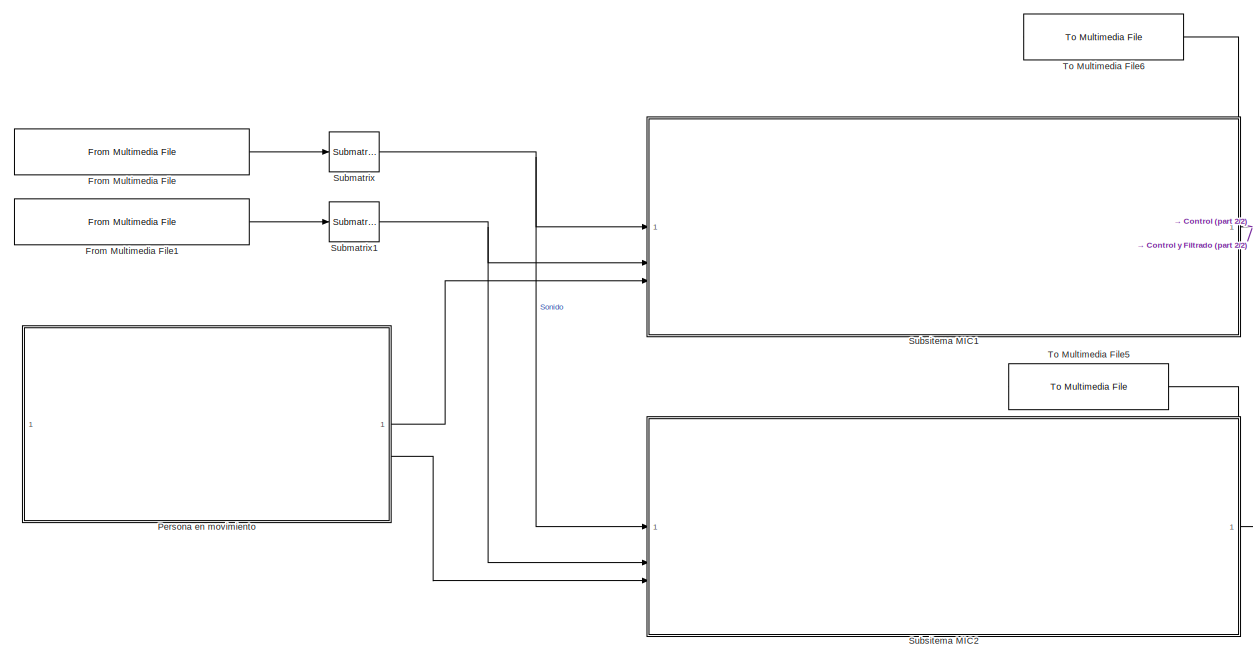
[diagram: root canvas - part 1/2, left side, full height]
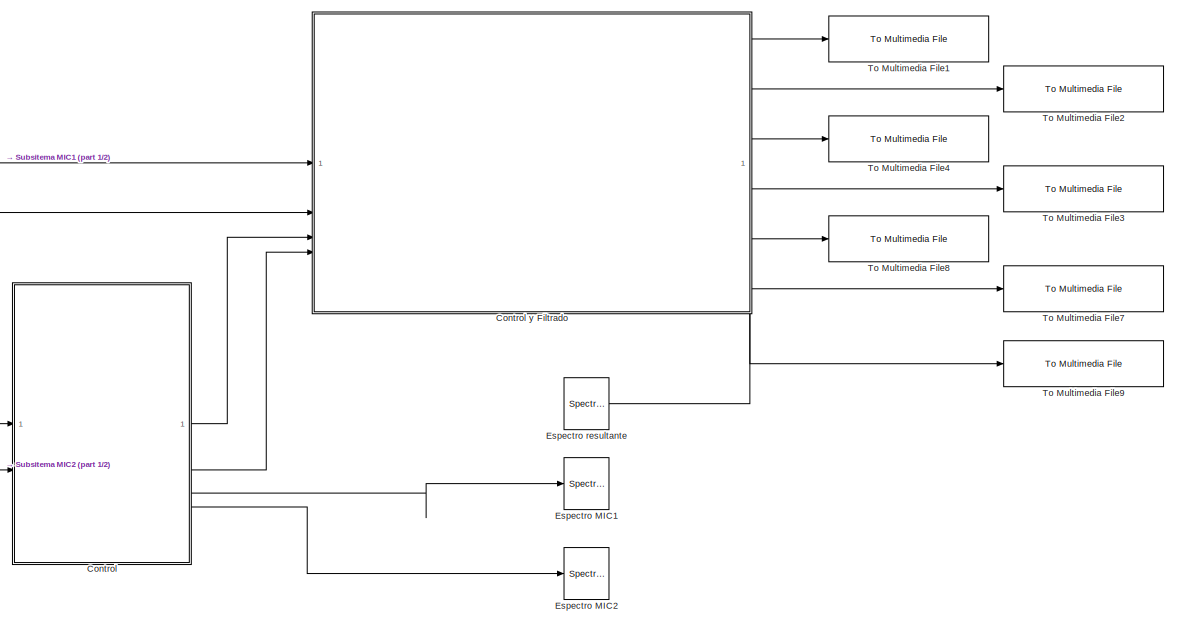
[diagram: root canvas - part 2/2, right side, full height]
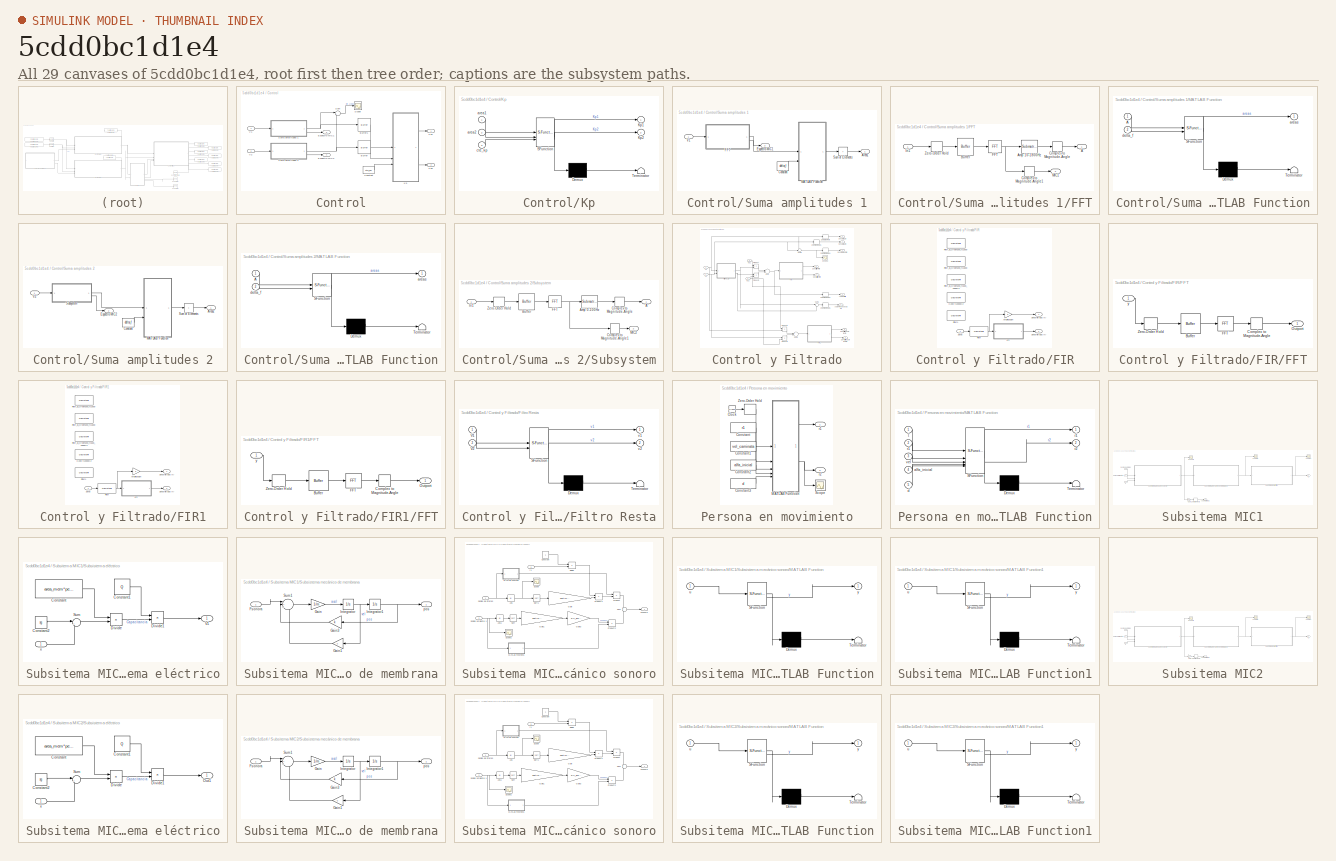
[diagram: thumbnail index - all 29 canvases of the model, root first then tree order]
MODEL slx_5cdd0bc1d1e4
KIND model
CONFIG AbsTol = auto
CONFIG EnableMultiTasking = off
CONFIG FixedStep = auto
CONFIG MaxStep = auto
CONFIG MinStep = auto
CONFIG RelTol = auto
CONFIG SampleTimeConstraint = Unconstrained
CONFIG SolverName = VariableStepAuto
CONFIG StartTime = 0.0
CONFIG StopTime = 3
BLOCK [SubSystem] Control
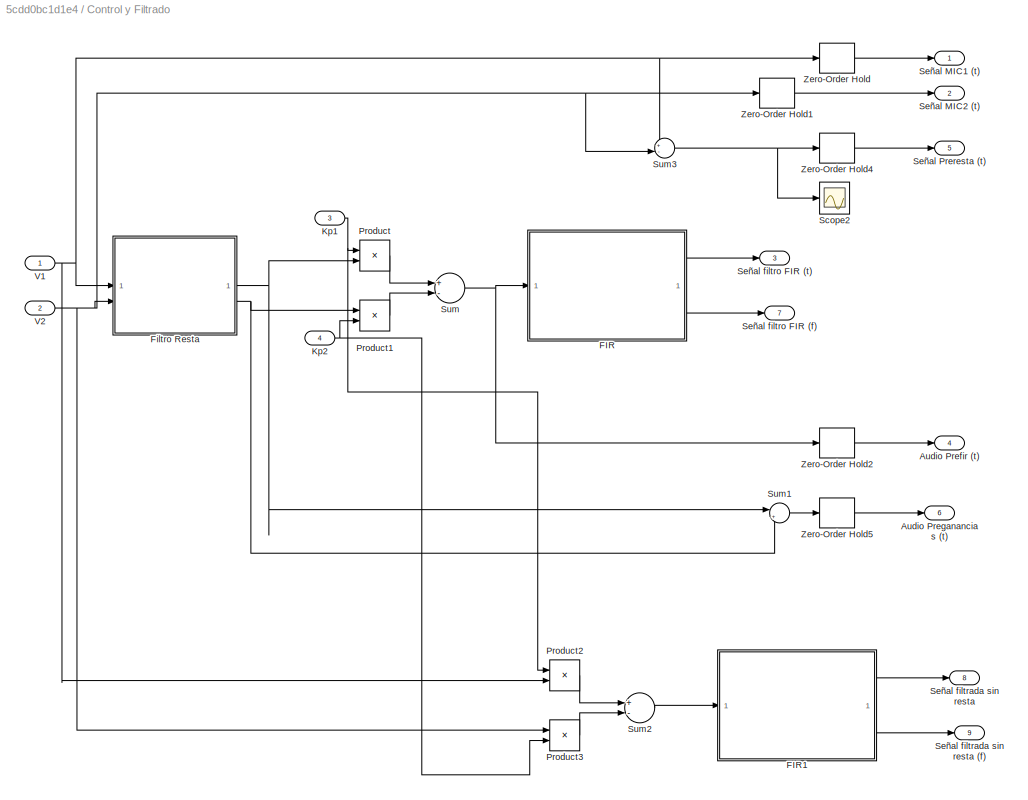
BLOCK [SubSystem] Control y Filtrado
  PortSchema = {"entries":[{"content":{"sides":[{"content":{"connectorIds":["In1","In2","In3","In4"]},"type":"ConnectorPlacement.EquallySpacedRectSide","uuid":"987fd9d9-21cd-4123-ad92-dc5a5b3a4bf5"},{"content":{"connectorIds":["Out1","Out2","Out3","Out4","Out5","Out6"],"side":"RIGHT"},"type":"ConnectorPlacement.EquallySpacedRectSide","uuid":"e6fc02b1-7263-4043-9731-d885e9513b62"},{"content":{"side":"TOP"},"type"...<+439ch>
BLOCK [Outport] Control y Filtrado/Audio Prefir (t)
  Port = 4
BLOCK [Outport] Control y Filtrado/Audio Preganancias (t)
  Port = 6
BLOCK [SubSystem] Control y Filtrado/FIR
BLOCK [Gain] Control y Filtrado/FIR/Amplificación
  Gain = 5
BLOCK [SubSystem] Control y Filtrado/FIR/FFT
BLOCK [Buffer] Control y Filtrado/FIR/FFT/Buffer
  N = 4410
  OutputFrames = off
BLOCK [ComplexToMagnitudeAngle] Control y Filtrado/FIR/FFT/Complex to Magnitude-Angle
  Output = Magnitude
BLOCK [Reference] Control y Filtrado/FIR/FFT/FFT  REF=dspxfrm3/FFT
  SourceBlock = dspxfrm3/FFT
  SourceType = FFT
BLOCK [Outport] Control y Filtrado/FIR/FFT/Outport
BLOCK [ZeroOrderHold] Control y Filtrado/FIR/FFT/Zero-Order Hold
  SampleTime = zoh_freq
BLOCK [Inport] Control y Filtrado/FIR/FFT/y
BLOCK [DiscreteFir] Control y Filtrado/FIR/Filter
  Coefficients = [0.000129486754971239307 -1.19387172948777314e-18 -0.000140997651009532732 -0.000293635243158208239 -0.000455749203386080902 -0.000621544103457885187 -0.000780672328542729422 -0.000917951896092269147 -0.00101387848765041393 -0.00104599980878265927 -0.000991116011549424613 -0.000828159701590279115 -0.000541504880495220949 -0.00012436801684229397 0.000418092861154113955 0.00106639506092730436 0.0017...<+1967ch>
  InputPortMap = u0
  OutputPortMap = o0
  Tag = BlockMethodSubSystem
BLOCK [DiscreteFir] Control y Filtrado/FIR/Filter1
  Coefficients = [0 -2.46968087486229999e-06 -3.07570330301983584e-05 -0.000118398297516965302 -0.000298367075036484037 -0.000596227803309950849 -0.00102003077952711506 -0.00154756625881359144 -0.00211289076768585247 -0.00259518747306043901 -0.00281365562212182018 -0.00253195194747434741 -0.00147460264563965674 0.00064414461322387991 0.00408104805501018075 0.00901875177176652762 0.0155214581908035953 0.02349910102...<+745ch>
  InputPortMap = u0
  OutputPortMap = o0
  Tag = BlockMethodSubSystem
BLOCK [DiscreteFir] Control y Filtrado/FIR/Filter_B_Orden200_fc1500
  Coefficients = [0 2.11514125222930549e-07 1.00093934765138096e-06 2.50662436979156886e-06 4.71763254290821587e-06 7.45535130819729324e-06 1.03710140877794857e-05 1.2960590087806268e-05 1.45973519410186672e-05 1.45811762675124996e-05 1.22023273134778345e-05 6.81618827244323951e-06 -2.07578339154207704e-06 -1.47446077930910027e-05 -3.11583144423782112e-05 -5.09193211148811369e-05 -7.32215020803920553e-05 -9.683328...<+4311ch>  <repeated x4 — deduplicated; at blocks: Filter_B_Orden200_fc1500, Filter_B_Orden200_fc1800>
  InputPortMap = u0
  OutputPortMap = o0
  Tag = BlockMethodSubSystem
BLOCK [DiscreteFir] Control y Filtrado/FIR/Filter_B_Orden200_fc1800
  InputPortMap = u0
  OutputPortMap = o0
  Tag = BlockMethodSubSystem
BLOCK [DiscreteFir] Control y Filtrado/FIR/Filter_B_Orden200_fc500_1600Hz
  Coefficients = [0 -3.55324752461809841e-07 -1.14041164662054229e-06 -1.86555151808696453e-06 -1.99844780883798536e-06 -1.03117503681064552e-06 1.45062710751347741e-06 5.70289528973608542e-06 1.17693159029814948e-05 1.94448656927964283e-05 2.82621895124256615e-05 3.75049240470417836e-05 4.62502611344708104e-05 5.34408510414543662e-05 5.79836863954314837e-05 5.88710269009623936e-05 5.53158980566520483e-05 4.689241...<+4287ch>
  InputPortMap = u0
  OutputPortMap = o0
  Tag = BlockMethodSubSystem
BLOCK [DiscreteFir] Control y Filtrado/FIR/H200 fc2000Hz
  Coefficients = [-5.56928887965323996e-05 1.65011438245537004e-05 8.97404129389855278e-05 0.000159235323802665862 0.00022009162972417537 0.000267507778546905491 0.000297028076662561244 0.00030485366062257119 0.000288200030555739591 0.000245675511305965986 0.000177641669329940406 8.6506699720296273e-05 -2.31018469780051173e-05 -0.00014433637834937926 -0.000268342086729793134 -0.000384707364236210015 -0.00048215215...<+4331ch>
  InputPortMap = u0
  OutputPortMap = o0
  Tag = BlockMethodSubSystem
BLOCK [Inport] Control y Filtrado/FIR/Señal
BLOCK [Outport] Control y Filtrado/FIR/Señal filtrada (f)
  Port = 2
BLOCK [Outport] Control y Filtrado/FIR/Señal filtrada (t)
BLOCK [SubSystem] Control y Filtrado/FIR1
BLOCK [Gain] Control y Filtrado/FIR1/Amplificación
  Gain = 5
BLOCK [SubSystem] Control y Filtrado/FIR1/FFT
BLOCK [Buffer] Control y Filtrado/FIR1/FFT/Buffer
  N = 4410
  OutputFrames = off
BLOCK [ComplexToMagnitudeAngle] Control y Filtrado/FIR1/FFT/Complex to Magnitude-Angle
  Output = Magnitude
BLOCK [Reference] Control y Filtrado/FIR1/FFT/FFT  REF=dspxfrm3/FFT
  SourceBlock = dspxfrm3/FFT
  SourceType = FFT
BLOCK [Outport] Control y Filtrado/FIR1/FFT/Outport
BLOCK [ZeroOrderHold] Control y Filtrado/FIR1/FFT/Zero-Order Hold
  SampleTime = zoh_freq
BLOCK [Inport] Control y Filtrado/FIR1/FFT/y
BLOCK [DiscreteFir] Control y Filtrado/FIR1/Filter
  Coefficients = [0.000129486754971239307 -1.19387172948777314e-18 -0.000140997651009532732 -0.000293635243158208239 -0.000455749203386080902 -0.000621544103457885187 -0.000780672328542729422 -0.000917951896092269147 -0.00101387848765041393 -0.00104599980878265927 -0.000991116011549424613 -0.000828159701590279115 -0.000541504880495220949 -0.00012436801684229397 0.000418092861154113955 0.00106639506092730436 0.0017...<+1967ch>
  InputPortMap = u0
  OutputPortMap = o0
  Tag = BlockMethodSubSystem
BLOCK [DiscreteFir] Control y Filtrado/FIR1/Filter1
  Coefficients = [0 -2.46968087486229999e-06 -3.07570330301983584e-05 -0.000118398297516965302 -0.000298367075036484037 -0.000596227803309950849 -0.00102003077952711506 -0.00154756625881359144 -0.00211289076768585247 -0.00259518747306043901 -0.00281365562212182018 -0.00253195194747434741 -0.00147460264563965674 0.00064414461322387991 0.00408104805501018075 0.00901875177176652762 0.0155214581908035953 0.02349910102...<+745ch>
  InputPortMap = u0
  OutputPortMap = o0
  Tag = BlockMethodSubSystem
BLOCK [DiscreteFir] Control y Filtrado/FIR1/Filter_B_Orden200_fc1500
  InputPortMap = u0
  OutputPortMap = o0
  Tag = BlockMethodSubSystem
BLOCK [DiscreteFir] Control y Filtrado/FIR1/Filter_B_Orden200_fc1800
  InputPortMap = u0
  OutputPortMap = o0
  Tag = BlockMethodSubSystem
BLOCK [DiscreteFir] Control y Filtrado/FIR1/Filter_B_Orden200_fc500_1600Hz
  Coefficients = [0 -3.55324752461809841e-07 -1.14041164662054229e-06 -1.86555151808696453e-06 -1.99844780883798536e-06 -1.03117503681064552e-06 1.45062710751347741e-06 5.70289528973608542e-06 1.17693159029814948e-05 1.94448656927964283e-05 2.82621895124256615e-05 3.75049240470417836e-05 4.62502611344708104e-05 5.34408510414543662e-05 5.79836863954314837e-05 5.88710269009623936e-05 5.53158980566520483e-05 4.689241...<+4287ch>
  InputPortMap = u0
  OutputPortMap = o0
  Tag = BlockMethodSubSystem
BLOCK [DiscreteFir] Control y Filtrado/FIR1/H200 fc2000Hz
  Coefficients = [-5.56928887965323996e-05 1.65011438245537004e-05 8.97404129389855278e-05 0.000159235323802665862 0.00022009162972417537 0.000267507778546905491 0.000297028076662561244 0.00030485366062257119 0.000288200030555739591 0.000245675511305965986 0.000177641669329940406 8.6506699720296273e-05 -2.31018469780051173e-05 -0.00014433637834937926 -0.000268342086729793134 -0.000384707364236210015 -0.00048215215...<+4331ch>
  InputPortMap = u0
  OutputPortMap = o0
  Tag = BlockMethodSubSystem
BLOCK [Inport] Control y Filtrado/FIR1/Señal
BLOCK [Outport] Control y Filtrado/FIR1/Señal filtrada (f)
  Port = 2
BLOCK [Outport] Control y Filtrado/FIR1/Señal filtrada (t)
BLOCK [SubSystem] Control y Filtrado/Filtro Resta
  ErrorFcn = Stateflow.Translate.translate
  LibrarySourceBlock = simulink/User-Defined\nFunctions/MATLAB Function
  PermitHierarchicalResolution = ExplicitOnly
  SFBlockType = MATLAB Function
  TreatAsAtomicUnit = on
BLOCK [Demux] Control y Filtrado/Filtro Resta/ Demux 
  Outputs = 1
BLOCK [S-Function] Control y Filtrado/Filtro Resta/ SFunction 
  EnableBusSupport = on
  FunctionName = sf_sfun
  PortCounts = [2 3]
  SFcnIsStateOwnerBlock = off
  SFunctionDeploymentMode = off
  Tag = Stateflow S-Function 1
BLOCK [Terminator] Control y Filtrado/Filtro Resta/ Terminator 
BLOCK [Inport] Control y Filtrado/Filtro Resta/V1
BLOCK [Inport] Control y Filtrado/Filtro Resta/V2
  Port = 2
BLOCK [Outport] Control y Filtrado/Filtro Resta/v1
BLOCK [Outport] Control y Filtrado/Filtro Resta/v2
  Port = 2
BLOCK [Inport] Control y Filtrado/Kp1
  Port = 3
BLOCK [Inport] Control y Filtrado/Kp2
  Port = 4
BLOCK [Product] Control y Filtrado/Product
BLOCK [Product] Control y Filtrado/Product1
BLOCK [Product] Control y Filtrado/Product2
BLOCK [Product] Control y Filtrado/Product3
BLOCK [Scope] Control y Filtrado/Scope2
  Floating = off
  NumInputPorts = 1
  ScopeSpecificationString = Simulink.scopes.TimeScopeBlockCfg('CurrentConfiguration', extmgr.ConfigurationSet(extmgr.Configuration('Core','General UI',true),extmgr.Configuration('Core','Source UI',true),extmgr.Configuration('Sources','WiredSimulink',true,'DataLoggingVariableName','ScopeData1'),extmgr.Configuration('Visuals','Time Domain',true,'SerializedDisplays',{struct('MinYLimReal','-0.05682','MaxYLimReal','0.0562','YLabe...<+1388ch>
BLOCK [Outport] Control y Filtrado/Señal MIC1 (t)
BLOCK [Outport] Control y Filtrado/Señal MIC2 (t)
  Port = 2
BLOCK [Outport] Control y Filtrado/Señal Preresta (t)
  Port = 5
BLOCK [Outport] Control y Filtrado/Señal filtrada sin resta
  Port = 8
BLOCK [Outport] Control y Filtrado/Señal filtrada sin resta (f)
  Port = 9
BLOCK [Outport] Control y Filtrado/Señal filtro FIR (f)
  Port = 7
BLOCK [Outport] Control y Filtrado/Señal filtro FIR (t)
  Port = 3
BLOCK [Sum] Control y Filtrado/Sum
  Inputs = +-
BLOCK [Sum] Control y Filtrado/Sum1
  Inputs = |+-
BLOCK [Sum] Control y Filtrado/Sum2
  Inputs = +-
BLOCK [Sum] Control y Filtrado/Sum3
  Inputs = +-|
BLOCK [Inport] Control y Filtrado/V1
BLOCK [Inport] Control y Filtrado/V2
  Port = 2
BLOCK [ZeroOrderHold] Control y Filtrado/Zero-Order Hold
  SampleTime = 1/fs
BLOCK [ZeroOrderHold] Control y Filtrado/Zero-Order Hold1
  SampleTime = 1/fs
BLOCK [ZeroOrderHold] Control y Filtrado/Zero-Order Hold2
  SampleTime = 1/fs
BLOCK [ZeroOrderHold] Control y Filtrado/Zero-Order Hold4
  SampleTime = 1/44100
BLOCK [ZeroOrderHold] Control y Filtrado/Zero-Order Hold5
  SampleTime = 1/fs
BLOCK [Buffer] Control/Buffer
  N = 10
  OutputFrames = off
  V = 9
BLOCK [Buffer] Control/Buffer1
  N = 10
  OutputFrames = off
  V = 9
BLOCK [Constant] Control/Constant
  Value = cte_kp
BLOCK [Outport] Control/Espectro MIC1
  Port = 3
BLOCK [Outport] Control/Espectro MIC2
  Port = 4
BLOCK [SubSystem] Control/Kp
  ErrorFcn = Stateflow.Translate.translate
  LibrarySourceBlock = simulink/User-Defined\nFunctions/MATLAB Function
  PermitHierarchicalResolution = ExplicitOnly
  SFBlockType = MATLAB Function
  TreatAsAtomicUnit = on
BLOCK [Demux] Control/Kp/ Demux 
  Outputs = 1
BLOCK [S-Function] Control/Kp/ SFunction 
  EnableBusSupport = on
  FunctionName = sf_sfun
  PortCounts = [3 3]
  SFcnIsStateOwnerBlock = off
  SFunctionDeploymentMode = off
  Tag = Stateflow S-Function 11
BLOCK [Terminator] Control/Kp/ Terminator 
BLOCK [Outport] Control/Kp/Kp1
BLOCK [Outport] Control/Kp/Kp2
  Port = 2
BLOCK [Inport] Control/Kp/area1
BLOCK [Inport] Control/Kp/area2
  Port = 2
BLOCK [Inport] Control/Kp/cte_kp
  Port = 3
BLOCK [Outport] Control/Kp1
BLOCK [Outport] Control/Kp2
  Port = 2
BLOCK [Scope] Control/Scope
  Floating = off
  NumInputPorts = 1
  ScopeSpecificationString = Simulink.scopes.TimeScopeBlockCfg('CurrentConfiguration', extmgr.ConfigurationSet(extmgr.Configuration('Core','General UI',true),extmgr.Configuration('Core','Source UI',true),extmgr.Configuration('Sources','WiredSimulink',true,'DataLoggingVariableName','ScopeData2'),extmgr.Configuration('Visuals','Time Domain',true,'SerializedDisplays',{struct('MinYLimReal','-1439.47469','MaxYLimReal','404.61958',...<+1455ch>
BLOCK [Sum] Control/Sum
  Inputs = |+-
BLOCK [SubSystem] Control/Suma amplitudes 1
BLOCK [Outport] Control/Suma amplitudes 1/Area1
BLOCK [Constant] Control/Suma amplitudes 1/Constant
  Value = delta_f
BLOCK [Outport] Control/Suma amplitudes 1/Espectro MIC1
  Port = 2
BLOCK [SubSystem] Control/Suma amplitudes 1/FFT
BLOCK [Outport] Control/Suma amplitudes 1/FFT/A
BLOCK [Reference] Control/Suma amplitudes 1/FFT/Amp 10-1800Hz  REF=matrix_library/Submatrix
  LibrarySourceBlock = simulink/Matrix\nOperations/Submatrix
  SourceBlock = matrix_library/Submatrix
  SourceType = Submatrix
BLOCK [Buffer] Control/Suma amplitudes 1/FFT/Buffer
  N = ventana_fft
  OutputFrames = off
  V = ventana_fft_analisis-1
BLOCK [ComplexToMagnitudeAngle] Control/Suma amplitudes 1/FFT/Complex to Magnitude-Angle
  Output = Magnitude
BLOCK [ComplexToMagnitudeAngle] Control/Suma amplitudes 1/FFT/Complex to Magnitude-Angle1
  Output = Magnitude
BLOCK [Reference] Control/Suma amplitudes 1/FFT/FFT  REF=dspxfrm3/FFT
  SourceBlock = dspxfrm3/FFT
  SourceType = FFT
BLOCK [Inport] Control/Suma amplitudes 1/FFT/In1
BLOCK [Outport] Control/Suma amplitudes 1/FFT/MIC1
  Port = 2
BLOCK [ZeroOrderHold] Control/Suma amplitudes 1/FFT/Zero-Order Hold
  SampleTime = zoh_freq
BLOCK [SubSystem] Control/Suma amplitudes 1/MATLAB Function
  ErrorFcn = Stateflow.Translate.translate
  LibrarySourceBlock = simulink/User-Defined\nFunctions/MATLAB Function
  PermitHierarchicalResolution = ExplicitOnly
  SFBlockType = MATLAB Function
  TreatAsAtomicUnit = on
BLOCK [Demux] Control/Suma amplitudes 1/MATLAB Function/ Demux 
  Outputs = 1
BLOCK [S-Function] Control/Suma amplitudes 1/MATLAB Function/ SFunction 
  EnableBusSupport = on
  FunctionName = sf_sfun
  PortCounts = [2 2]
  SFcnIsStateOwnerBlock = off
  SFunctionDeploymentMode = off
  Tag = Stateflow S-Function 15
BLOCK [Terminator] Control/Suma amplitudes 1/MATLAB Function/ Terminator 
BLOCK [Inport] Control/Suma amplitudes 1/MATLAB Function/A
BLOCK [Outport] Control/Suma amplitudes 1/MATLAB Function/areas
BLOCK [Inport] Control/Suma amplitudes 1/MATLAB Function/delta_f
  Port = 2
BLOCK [Sum] Control/Suma amplitudes 1/Sum of Elements
  IconShape = rectangular
  Inputs = +
BLOCK [Inport] Control/Suma amplitudes 1/V1
BLOCK [SubSystem] Control/Suma amplitudes 2
BLOCK [Outport] Control/Suma amplitudes 2/Area2
BLOCK [Constant] Control/Suma amplitudes 2/Constant
  Value = delta_f
BLOCK [Outport] Control/Suma amplitudes 2/Espectro MIC2
  Port = 2
BLOCK [SubSystem] Control/Suma amplitudes 2/MATLAB Function
  ErrorFcn = Stateflow.Translate.translate
  LibrarySourceBlock = simulink/User-Defined\nFunctions/MATLAB Function
  PermitHierarchicalResolution = ExplicitOnly
  SFBlockType = MATLAB Function
  TreatAsAtomicUnit = on
BLOCK [Demux] Control/Suma amplitudes 2/MATLAB Function/ Demux 
  Outputs = 1
BLOCK [S-Function] Control/Suma amplitudes 2/MATLAB Function/ SFunction 
  EnableBusSupport = on
  FunctionName = sf_sfun
  PortCounts = [2 2]
  SFcnIsStateOwnerBlock = off
  SFunctionDeploymentMode = off
  Tag = Stateflow S-Function 16
BLOCK [Terminator] Control/Suma amplitudes 2/MATLAB Function/ Terminator 
BLOCK [Inport] Control/Suma amplitudes 2/MATLAB Function/A
BLOCK [Outport] Control/Suma amplitudes 2/MATLAB Function/areas
BLOCK [Inport] Control/Suma amplitudes 2/MATLAB Function/delta_f
  Port = 2
BLOCK [SubSystem] Control/Suma amplitudes 2/Subsystem
BLOCK [Outport] Control/Suma amplitudes 2/Subsystem/A
BLOCK [Reference] Control/Suma amplitudes 2/Subsystem/Amp 0-100Hz  REF=matrix_library/Submatrix
  LibrarySourceBlock = simulink/Matrix\nOperations/Submatrix
  SourceBlock = matrix_library/Submatrix
  SourceType = Submatrix
BLOCK [Buffer] Control/Suma amplitudes 2/Subsystem/Buffer
  N = ventana_fft
  OutputFrames = off
  V = ventana_fft_analisis-1
BLOCK [ComplexToMagnitudeAngle] Control/Suma amplitudes 2/Subsystem/Complex to Magnitude-Angle
  Output = Magnitude
BLOCK [ComplexToMagnitudeAngle] Control/Suma amplitudes 2/Subsystem/Complex to Magnitude-Angle1
  Output = Magnitude
BLOCK [Reference] Control/Suma amplitudes 2/Subsystem/FFT  REF=dspxfrm3/FFT
  SourceBlock = dspxfrm3/FFT
  SourceType = FFT
BLOCK [Inport] Control/Suma amplitudes 2/Subsystem/In1
BLOCK [Outport] Control/Suma amplitudes 2/Subsystem/MIC2
  Port = 2
BLOCK [ZeroOrderHold] Control/Suma amplitudes 2/Subsystem/Zero-Order Hold
  SampleTime = zoh_freq
BLOCK [Sum] Control/Suma amplitudes 2/Sum of Elements
  IconShape = rectangular
  Inputs = +
BLOCK [Inport] Control/Suma amplitudes 2/V2
BLOCK [Inport] Control/V1
BLOCK [Inport] Control/V2
  Port = 2
BLOCK [SpectrumAnalyzer] Espectro MIC1
  DefaultConfigurationName = spbscopes.SpectrumAnalyzerBlockCfg
  FrequencyInputRBWFromPort = 0
  FrequencyInputRBWPort = 0
  FrequencySpan = Start and stop frequencies
  FrequencyVectorFromPort = 0
  FrequencyVectorPort = 0
  GraphicalSettings = {"GraphicalSettings":{"Style":{"BackgroundColor":[1,1,1],"AxesColor":[1,1,1],"LabelsColor":[0,0,0],"PreserveColors":false,"Visible":[true],"LineStyle":["-"],"LineColor":[[0,0.4470588235294118,0.7411764705882353]],"LineWidth":[1.5],"Marker":["none"],"FontSize":"small"},"Cursors":{"Enabled":false,"XLocation":[2,8],"YLocation":[2,8],"SnapToData":false,"LockSpacing":false,"ShowText":false,"LinkToWavef...<+745ch>
  InputDomain = Frequency
  IsFrequencyInputMode = 0
  PlotAsTwoSidedSpectrum = off
  SampleRate = 44.1e3
  SampleRateSource = Property
  ScopeFrameLocation = window
  ScopeSpecificationString = spbscopes.SpectrumAnalyzerBlockCfg('CurrentConfiguration', extmgr.ConfigurationSet(extmgr.Configuration('Core','General UI',true),extmgr.Configuration('Core','Source UI',true),extmgr.Configuration('Sources','WiredSimulink',true),extmgr.Configuration('Visuals','Spectrum',true,'AxesProperties',struct('Color',{[0 0 0],[0 0 0]},'XColor',{[0.686274509803922 0.686274509803922 0.686274509803922],[0.68627...<+1720ch>  <repeated x3 — deduplicated; at blocks: Espectro MIC1, Espectro MIC2, Espectro resultante>
  SpectrumUnits = Auto
  StartFrequency = 20
  StopFrequency = 20e3
  Visible = on
  WasSavedAsWebScope = on
  WindowPosition = [-1082.000000,-195.000000,958.000000,485.000000,]
  YLimits = [-272.35090777,2451.67942827]
BLOCK [SpectrumAnalyzer] Espectro MIC2
  DefaultConfigurationName = spbscopes.SpectrumAnalyzerBlockCfg
  FrequencyInputRBWFromPort = 0
  FrequencyInputRBWPort = 0
  FrequencySpan = Start and stop frequencies
  FrequencyVectorFromPort = 0
  FrequencyVectorPort = 0
  GraphicalSettings = {"GraphicalSettings":{"Style":{"BackgroundColor":[1,1,1],"AxesColor":[1,1,1],"LabelsColor":[0,0,0],"PreserveColors":false,"Visible":[true],"LineStyle":["-"],"LineColor":[[0,0,0]],"LineWidth":[1.5],"Marker":["none"],"FontSize":"small"},"Cursors":{"Enabled":false,"XLocation":[2,8],"YLocation":[2,8],"SnapToData":false,"LockSpacing":false,"ShowText":false,"LinkToWaveform":true,"Vertical":true,"Horizon...<+711ch>
  InputDomain = Frequency
  IsFrequencyInputMode = 0
  PlotAsTwoSidedSpectrum = off
  SampleRate = 44.1e3
  SampleRateSource = Property
  ScopeFrameLocation = window
  SpectrumUnits = Auto
  StartFrequency = 20
  StopFrequency = 20e3
  Visible = on
  WasSavedAsWebScope = on
  WindowPosition = [-319.000000,565.000000,958.000000,485.000000,]
  YLimits = [-272.34098994,2451.61418129]
BLOCK [SpectrumAnalyzer] Espectro resultante
  DefaultConfigurationName = spbscopes.SpectrumAnalyzerBlockCfg
  FrequencyInputRBWFromPort = 0
  FrequencyInputRBWPort = 0
  FrequencySpan = Start and stop frequencies
  FrequencyVectorFromPort = 0
  FrequencyVectorPort = 0
  GraphicalSettings = {"GraphicalSettings":{"Style":{"BackgroundColor":[1,1,1],"AxesColor":[1,1,1],"LabelsColor":[0,0,0],"PreserveColors":false,"Visible":[true],"LineStyle":["-"],"LineColor":[[0,0,0]],"LineWidth":[1.5],"Marker":["none"],"FontSize":"small"},"Cursors":{"Enabled":false,"XLocation":[2,8],"YLocation":[2,8],"SnapToData":false,"LockSpacing":false,"ShowText":false,"LinkToWaveform":true,"Vertical":true,"Horizon...<+711ch>
  InputDomain = Frequency
  IsFrequencyInputMode = 0
  PlotAsTwoSidedSpectrum = off
  SampleRate = 44.1e3
  SampleRateSource = Property
  ScopeFrameLocation = window
  SpectrumUnits = Auto
  StartFrequency = 20
  StopFrequency = 20e3
  Visible = on
  WasSavedAsWebScope = on
  WindowPosition = [1375.000000,-496.000000,958.000000,1001.000000,]
  YLimits = [-0.77365659,6.96789174]
BLOCK [Reference] From Multimedia File  REF=dspvision/From Multimedia File
  LibrarySourceBlock = audiosources/From Multimedia File
  SourceBlock = dspvision/From Multimedia File
  SourceType = From Multimedia File
BLOCK [Reference] From Multimedia File1  REF=dspvision/From Multimedia File
  LibrarySourceBlock = audiosources/From Multimedia File
  SourceBlock = dspvision/From Multimedia File
  SourceType = From Multimedia File
BLOCK [SubSystem] Persona en movimiento
BLOCK [Clock] Persona en movimiento/Clock
  Decimation = 1
BLOCK [Constant] Persona en movimiento/Constant
  Value = r1
BLOCK [Constant] Persona en movimiento/Constant1
  Value = vel_caminata
BLOCK [Constant] Persona en movimiento/Constant2
  Value = alfa_inicial
BLOCK [Constant] Persona en movimiento/Constant3
  Value = d
BLOCK [SubSystem] Persona en movimiento/MATLAB Function
  ErrorFcn = Stateflow.Translate.translate
  LibrarySourceBlock = simulink/User-Defined\nFunctions/MATLAB Function
  PermitHierarchicalResolution = ExplicitOnly
  SFBlockType = MATLAB Function
  TreatAsAtomicUnit = on
BLOCK [Demux] Persona en movimiento/MATLAB Function/ Demux 
  Outputs = 1
BLOCK [S-Function] Persona en movimiento/MATLAB Function/ SFunction 
  EnableBusSupport = on
  FunctionName = sf_sfun
  PortCounts = [5 3]
  SFcnIsStateOwnerBlock = off
  SFunctionDeploymentMode = off
  Tag = Stateflow S-Function 5
BLOCK [Terminator] Persona en movimiento/MATLAB Function/ Terminator 
BLOCK [Inport] Persona en movimiento/MATLAB Function/alfa_inicial
  Port = 4
BLOCK [Inport] Persona en movimiento/MATLAB Function/d
  Port = 5
BLOCK [Outport] Persona en movimiento/MATLAB Function/r1
BLOCK [Inport] Persona en movimiento/MATLAB Function/r1 
  Port = 2
BLOCK [Outport] Persona en movimiento/MATLAB Function/r2
  Port = 2
BLOCK [Inport] Persona en movimiento/MATLAB Function/t
BLOCK [Inport] Persona en movimiento/MATLAB Function/vel
  Port = 3
BLOCK [Scope] Persona en movimiento/Scope
  Floating = off
  NumInputPorts = 1
  ScopeSpecificationString = Simulink.scopes.TimeScopeBlockCfg('CurrentConfiguration', extmgr.ConfigurationSet(extmgr.Configuration('Core','General UI',true),extmgr.Configuration('Core','Source UI',true),extmgr.Configuration('Sources','WiredSimulink',true,'DataLoggingVariableName','ScopeData3'),extmgr.Configuration('Visuals','Time Domain',true,'SerializedDisplays',{struct('MinYLimReal','0.41007','MaxYLimReal','0.60999','YLabe...<+1408ch>
BLOCK [ZeroOrderHold] Persona en movimiento/Zero-Order Hold
  SampleTime = 0.1
BLOCK [Outport] Persona en movimiento/r1
BLOCK [Outport] Persona en movimiento/r2
  Port = 2
BLOCK [Reference] Submatrix  REF=matrix_library/Submatrix
  LibrarySourceBlock = simulink/Matrix\nOperations/Submatrix
  SourceBlock = matrix_library/Submatrix
  SourceType = Submatrix
BLOCK [Reference] Submatrix1  REF=matrix_library/Submatrix
  LibrarySourceBlock = simulink/Matrix\nOperations/Submatrix
  SourceBlock = matrix_library/Submatrix
  SourceType = Submatrix
BLOCK [SubSystem] Subsitema MIC1
  PortSchema = {"entries":[{"content":{"sides":[{"content":{"connectorIds":["In1","In2","In3"]},"type":"ConnectorPlacement.EquallySpacedRectSide","uuid":"51a7e573-eb7c-4f6f-aee5-3f1319db6f4c"},{"content":{"connectorIds":["Out1"],"side":"RIGHT"},"type":"ConnectorPlacement.EquallySpacedRectSide","uuid":"261d4bc7-5f06-4ae7-a6e3-c4702b320a06"},{"content":{"connectorIds":["Out2"],"side":"TOP"},"type":"ConnectorPlacem...<+384ch>
BLOCK [Outport] Subsitema MIC1/Audio Original 1
  Port = 2
BLOCK [Scope] Subsitema MIC1/Fsonora
  Floating = off
  NumInputPorts = 1
  ScopeSpecificationString = Simulink.scopes.TimeScopeBlockCfg('CurrentConfiguration', extmgr.ConfigurationSet(extmgr.Configuration('Core','General UI',true),extmgr.Configuration('Core','Source UI',true),extmgr.Configuration('Sources','WiredSimulink',true),extmgr.Configuration('Visuals','Time Domain',true,'SerializedDisplays',{struct('MinYLimReal','-0.00023','MaxYLimReal','0.0003','YLabelReal','','MinYLimMag','0.00000','MaxYL...<+1388ch>
BLOCK [Gain] Subsitema MIC1/Gain
  Gain = 10000
BLOCK [Scope] Subsitema MIC1/Posición
  Floating = off
  NumInputPorts = 1
  ScopeSpecificationString = Simulink.scopes.TimeScopeBlockCfg('CurrentConfiguration', extmgr.ConfigurationSet(extmgr.Configuration('Core','General UI',true),extmgr.Configuration('Core','Source UI',true),extmgr.Configuration('Sources','WiredSimulink',true,'DataLoggingVariableName','ScopeData3'),extmgr.Configuration('Visuals','Time Domain',true,'SerializedDisplays',{struct('MinYLimReal','-0.000011','MaxYLimReal','0.000011','YL...<+1398ch>
BLOCK [Inport] Subsitema MIC1/Sonido ambiente 1
  Port = 2
BLOCK [Inport] Subsitema MIC1/Sonido de interes
BLOCK [SubSystem] Subsitema MIC1/Subsistema eléctrico
BLOCK [Constant] Subsitema MIC1/Subsistema eléctrico/Constant
  Value = area_mem*perm
BLOCK [Constant] Subsitema MIC1/Subsistema eléctrico/Constant1
  Value = Q
BLOCK [Constant] Subsitema MIC1/Subsistema eléctrico/Constant2
  Value = sg
BLOCK [Product] Subsitema MIC1/Subsistema eléctrico/Divide
  Inputs = */
BLOCK [Product] Subsitema MIC1/Subsistema eléctrico/Divide1
  Inputs = */
BLOCK [Sum] Subsitema MIC1/Subsistema eléctrico/Sum
  Inputs = |+-
BLOCK [Outport] Subsitema MIC1/Subsistema eléctrico/V1
BLOCK [Inport] Subsitema MIC1/Subsistema eléctrico/x
BLOCK [SubSystem] Subsitema MIC1/Subsistema mecánico de membrana
BLOCK [Inport] Subsitema MIC1/Subsistema mecánico de membrana/Fsonora
BLOCK [Gain] Subsitema MIC1/Subsistema mecánico de membrana/Gain
  Gain = 1/m
BLOCK [Gain] Subsitema MIC1/Subsistema mecánico de membrana/Gain1
  Gain = c
BLOCK [Gain] Subsitema MIC1/Subsistema mecánico de membrana/Gain3
  Gain = k
BLOCK [Integrator] Subsitema MIC1/Subsistema mecánico de membrana/Integrator
BLOCK [Integrator] Subsitema MIC1/Subsistema mecánico de membrana/Integrator1
BLOCK [Sum] Subsitema MIC1/Subsistema mecánico de membrana/Sum1
  Inputs = |+--
BLOCK [Outport] Subsitema MIC1/Subsistema mecánico de membrana/pos
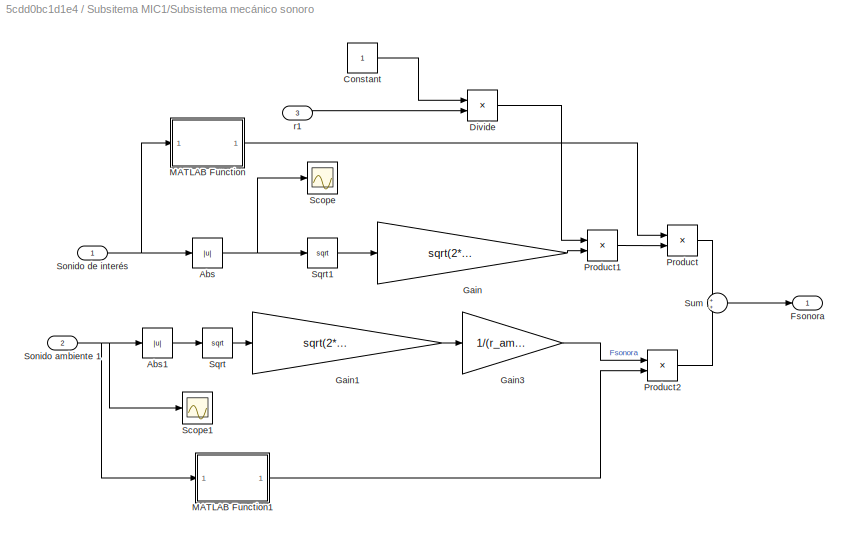
BLOCK [SubSystem] Subsitema MIC1/Subsistema mecánico sonoro
BLOCK [Abs] Subsitema MIC1/Subsistema mecánico sonoro/Abs
  SaturateOnIntegerOverflow = off
BLOCK [Abs] Subsitema MIC1/Subsistema mecánico sonoro/Abs1
  SaturateOnIntegerOverflow = off
BLOCK [Constant] Subsitema MIC1/Subsistema mecánico sonoro/Constant
BLOCK [Product] Subsitema MIC1/Subsistema mecánico sonoro/Divide
  Inputs = */
BLOCK [Outport] Subsitema MIC1/Subsistema mecánico sonoro/Fsonora
BLOCK [Gain] Subsitema MIC1/Subsistema mecánico sonoro/Gain
  Gain = sqrt(2*rho*v_sonido)*area_mem
BLOCK [Gain] Subsitema MIC1/Subsistema mecánico sonoro/Gain1
  Gain = sqrt(2*rho*v_sonido)*area_mem
BLOCK [Gain] Subsitema MIC1/Subsistema mecánico sonoro/Gain3
  Gain = 1/(r_ambiente1)
BLOCK [SubSystem] Subsitema MIC1/Subsistema mecánico sonoro/MATLAB Function
  ErrorFcn = Stateflow.Translate.translate
  LibrarySourceBlock = simulink/User-Defined\nFunctions/MATLAB Function
  PermitHierarchicalResolution = ExplicitOnly
  SFBlockType = MATLAB Function
  TreatAsAtomicUnit = on
BLOCK [Demux] Subsitema MIC1/Subsistema mecánico sonoro/MATLAB Function/ Demux 
  Outputs = 1
BLOCK [S-Function] Subsitema MIC1/Subsistema mecánico sonoro/MATLAB Function/ SFunction 
  EnableBusSupport = on
  FunctionName = sf_sfun
  PortCounts = [1 2]
  SFcnIsStateOwnerBlock = off
  SFunctionDeploymentMode = off
  Tag = Stateflow S-Function 2
BLOCK [Terminator] Subsitema MIC1/Subsistema mecánico sonoro/MATLAB Function/ Terminator 
BLOCK [Inport] Subsitema MIC1/Subsistema mecánico sonoro/MATLAB Function/u
BLOCK [Outport] Subsitema MIC1/Subsistema mecánico sonoro/MATLAB Function/y
BLOCK [SubSystem] Subsitema MIC1/Subsistema mecánico sonoro/MATLAB Function1
  ErrorFcn = Stateflow.Translate.translate
  LibrarySourceBlock = simulink/User-Defined\nFunctions/MATLAB Function
  PermitHierarchicalResolution = ExplicitOnly
  SFBlockType = MATLAB Function
  TreatAsAtomicUnit = on
BLOCK [Demux] Subsitema MIC1/Subsistema mecánico sonoro/MATLAB Function1/ Demux 
  Outputs = 1
BLOCK [S-Function] Subsitema MIC1/Subsistema mecánico sonoro/MATLAB Function1/ SFunction 
  EnableBusSupport = on
  FunctionName = sf_sfun
  PortCounts = [1 2]
  SFcnIsStateOwnerBlock = off
  SFunctionDeploymentMode = off
  Tag = Stateflow S-Function 3
BLOCK [Terminator] Subsitema MIC1/Subsistema mecánico sonoro/MATLAB Function1/ Terminator 
BLOCK [Inport] Subsitema MIC1/Subsistema mecánico sonoro/MATLAB Function1/u
BLOCK [Outport] Subsitema MIC1/Subsistema mecánico sonoro/MATLAB Function1/y
BLOCK [Product] Subsitema MIC1/Subsistema mecánico sonoro/Product
BLOCK [Product] Subsitema MIC1/Subsistema mecánico sonoro/Product1
BLOCK [Product] Subsitema MIC1/Subsistema mecánico sonoro/Product2
BLOCK [Scope] Subsitema MIC1/Subsistema mecánico sonoro/Scope
  Floating = off
  NumInputPorts = 1
  ScopeSpecificationString = Simulink.scopes.TimeScopeBlockCfg('CurrentConfiguration', extmgr.ConfigurationSet(extmgr.Configuration('Core','General UI',true),extmgr.Configuration('Core','Source UI',true),extmgr.Configuration('Sources','WiredSimulink',true,'DataLoggingVariableName','ScopeData1'),extmgr.Configuration('Visuals','Time Domain',true,'SerializedDisplays',{struct('MinYLimReal','-0.27585','MaxYLimReal','0.3576','YLabe...<+1372ch>
BLOCK [Scope] Subsitema MIC1/Subsistema mecánico sonoro/Scope1
  Floating = off
  NumInputPorts = 1
  ScopeSpecificationString = Simulink.scopes.TimeScopeBlockCfg('CurrentConfiguration', extmgr.ConfigurationSet(extmgr.Configuration('Core','General UI',true),extmgr.Configuration('Core','Source UI',true),extmgr.Configuration('Sources','WiredSimulink',true,'DataLoggingVariableName','ScopeData2'),extmgr.Configuration('Visuals','Time Domain',true),extmgr.Configuration('Tools','Plot Navigation',true),extmgr.Configuration('Tools',...<+40ch>
BLOCK [Inport] Subsitema MIC1/Subsistema mecánico sonoro/Sonido ambiente 1
  Port = 2
BLOCK [Inport] Subsitema MIC1/Subsistema mecánico sonoro/Sonido de interés
BLOCK [Sqrt] Subsitema MIC1/Subsistema mecánico sonoro/Sqrt
BLOCK [Sqrt] Subsitema MIC1/Subsistema mecánico sonoro/Sqrt1
BLOCK [Sum] Subsitema MIC1/Subsistema mecánico sonoro/Sum
BLOCK [Inport] Subsitema MIC1/Subsistema mecánico sonoro/r1
  Port = 3
BLOCK [Scope] Subsitema MIC1/Tensión
  Floating = off
  NumInputPorts = 1
  ScopeSpecificationString = Simulink.scopes.TimeScopeBlockCfg('CurrentConfiguration', extmgr.ConfigurationSet(extmgr.Configuration('Core','General UI',true),extmgr.Configuration('Core','Source UI',true),extmgr.Configuration('Sources','WiredSimulink',true,'DataLoggingVariableName','ScopeData1'),extmgr.Configuration('Visuals','Time Domain',true,'SerializedDisplays',{struct('MinYLimReal','-2.47683','MaxYLimReal','2.43758','YLab...<+1379ch>
BLOCK [Outport] Subsitema MIC1/V1
BLOCK [ZeroOrderHold] Subsitema MIC1/Zero-Order Hold
  SampleTime = 1/fs
BLOCK [Inport] Subsitema MIC1/r1
  Port = 3
BLOCK [SubSystem] Subsitema MIC2
  PortSchema = {"entries":[{"content":{"sides":[{"content":{"connectorIds":["In1","In2","In3"]},"type":"ConnectorPlacement.EquallySpacedRectSide","uuid":"51a7e573-eb7c-4f6f-aee5-3f1319db6f4c"},{"content":{"connectorIds":["Out1"],"side":"RIGHT"},"type":"ConnectorPlacement.EquallySpacedRectSide","uuid":"261d4bc7-5f06-4ae7-a6e3-c4702b320a06"},{"content":{"connectorIds":["Out2"],"side":"TOP"},"type":"ConnectorPlacem...<+258ch>
BLOCK [Outport] Subsitema MIC2/Audio Original 2
  Port = 2
BLOCK [Scope] Subsitema MIC2/Fsonora
  Floating = off
  NumInputPorts = 1
  ScopeSpecificationString = Simulink.scopes.TimeScopeBlockCfg('CurrentConfiguration', extmgr.ConfigurationSet(extmgr.Configuration('Core','General UI',true),extmgr.Configuration('Core','Source UI',true),extmgr.Configuration('Sources','WiredSimulink',true),extmgr.Configuration('Visuals','Time Domain',true,'SerializedDisplays',{struct('MinYLimReal','-0.00023','MaxYLimReal','0.0003','YLabelReal','','MinYLimMag','0.00000','MaxYL...<+1397ch>
BLOCK [Gain] Subsitema MIC2/Gain
  Gain = 10000
BLOCK [Scope] Subsitema MIC2/Posición
  Floating = off
  NumInputPorts = 1
  ScopeSpecificationString = Simulink.scopes.TimeScopeBlockCfg('CurrentConfiguration', extmgr.ConfigurationSet(extmgr.Configuration('Core','General UI',true),extmgr.Configuration('Core','Source UI',true),extmgr.Configuration('Sources','WiredSimulink',true,'DataLoggingVariableName','ScopeData3'),extmgr.Configuration('Visuals','Time Domain',true,'SerializedDisplays',{struct('MinYLimReal','-0.000011','MaxYLimReal','0.000011','YL...<+1398ch>
BLOCK [Inport] Subsitema MIC2/Sonido ambiente 1
  Port = 2
BLOCK [Inport] Subsitema MIC2/Sonido de interes
BLOCK [SubSystem] Subsitema MIC2/Subsistema eléctrico
BLOCK [Constant] Subsitema MIC2/Subsistema eléctrico/Constant
  Value = area_mem*perm
BLOCK [Constant] Subsitema MIC2/Subsistema eléctrico/Constant1
  Value = Q
BLOCK [Constant] Subsitema MIC2/Subsistema eléctrico/Constant2
  Value = sg
BLOCK [Product] Subsitema MIC2/Subsistema eléctrico/Divide
  Inputs = */
BLOCK [Product] Subsitema MIC2/Subsistema eléctrico/Divide1
  Inputs = */
BLOCK [Outport] Subsitema MIC2/Subsistema eléctrico/Out1
BLOCK [Sum] Subsitema MIC2/Subsistema eléctrico/Sum
  Inputs = |+-
BLOCK [Inport] Subsitema MIC2/Subsistema eléctrico/x
BLOCK [SubSystem] Subsitema MIC2/Subsistema mecánico de membrana
BLOCK [Inport] Subsitema MIC2/Subsistema mecánico de membrana/Fsonora
BLOCK [Gain] Subsitema MIC2/Subsistema mecánico de membrana/Gain
  Gain = 1/m
BLOCK [Gain] Subsitema MIC2/Subsistema mecánico de membrana/Gain1
  Gain = c
BLOCK [Gain] Subsitema MIC2/Subsistema mecánico de membrana/Gain3
  Gain = k
BLOCK [Integrator] Subsitema MIC2/Subsistema mecánico de membrana/Integrator
BLOCK [Integrator] Subsitema MIC2/Subsistema mecánico de membrana/Integrator1
BLOCK [Sum] Subsitema MIC2/Subsistema mecánico de membrana/Sum1
  Inputs = |+--
BLOCK [Outport] Subsitema MIC2/Subsistema mecánico de membrana/pos
BLOCK [SubSystem] Subsitema MIC2/Subsistema mecánico sonoro
BLOCK [Abs] Subsitema MIC2/Subsistema mecánico sonoro/Abs
  SaturateOnIntegerOverflow = off
BLOCK [Abs] Subsitema MIC2/Subsistema mecánico sonoro/Abs1
  SaturateOnIntegerOverflow = off
BLOCK [Constant] Subsitema MIC2/Subsistema mecánico sonoro/Constant
BLOCK [Product] Subsitema MIC2/Subsistema mecánico sonoro/Divide
  Inputs = */
BLOCK [Outport] Subsitema MIC2/Subsistema mecánico sonoro/Fsonora
BLOCK [Gain] Subsitema MIC2/Subsistema mecánico sonoro/Gain
  Gain = sqrt(2*rho*v_sonido)*area_mem
BLOCK [Gain] Subsitema MIC2/Subsistema mecánico sonoro/Gain1
  Gain = sqrt(2*rho*v_sonido)*area_mem
BLOCK [Gain] Subsitema MIC2/Subsistema mecánico sonoro/Gain3
  Gain = 1/(r_ambiente2)
BLOCK [SubSystem] Subsitema MIC2/Subsistema mecánico sonoro/MATLAB Function
  ErrorFcn = Stateflow.Translate.translate
  LibrarySourceBlock = simulink/User-Defined\nFunctions/MATLAB Function
  PermitHierarchicalResolution = ExplicitOnly
  SFBlockType = MATLAB Function
  TreatAsAtomicUnit = on
BLOCK [Demux] Subsitema MIC2/Subsistema mecánico sonoro/MATLAB Function/ Demux 
  Outputs = 1
BLOCK [S-Function] Subsitema MIC2/Subsistema mecánico sonoro/MATLAB Function/ SFunction 
  EnableBusSupport = on
  FunctionName = sf_sfun
  PortCounts = [1 2]
  SFcnIsStateOwnerBlock = off
  SFunctionDeploymentMode = off
  Tag = Stateflow S-Function 4
BLOCK [Terminator] Subsitema MIC2/Subsistema mecánico sonoro/MATLAB Function/ Terminator 
BLOCK [Inport] Subsitema MIC2/Subsistema mecánico sonoro/MATLAB Function/u
BLOCK [Outport] Subsitema MIC2/Subsistema mecánico sonoro/MATLAB Function/y
BLOCK [SubSystem] Subsitema MIC2/Subsistema mecánico sonoro/MATLAB Function1
  ErrorFcn = Stateflow.Translate.translate
  LibrarySourceBlock = simulink/User-Defined\nFunctions/MATLAB Function
  PermitHierarchicalResolution = ExplicitOnly
  SFBlockType = MATLAB Function
  TreatAsAtomicUnit = on
BLOCK [Demux] Subsitema MIC2/Subsistema mecánico sonoro/MATLAB Function1/ Demux 
  Outputs = 1
BLOCK [S-Function] Subsitema MIC2/Subsistema mecánico sonoro/MATLAB Function1/ SFunction 
  EnableBusSupport = on
  FunctionName = sf_sfun
  PortCounts = [1 2]
  SFcnIsStateOwnerBlock = off
  SFunctionDeploymentMode = off
  Tag = Stateflow S-Function 6
BLOCK [Terminator] Subsitema MIC2/Subsistema mecánico sonoro/MATLAB Function1/ Terminator 
BLOCK [Inport] Subsitema MIC2/Subsistema mecánico sonoro/MATLAB Function1/u
BLOCK [Outport] Subsitema MIC2/Subsistema mecánico sonoro/MATLAB Function1/y
BLOCK [Product] Subsitema MIC2/Subsistema mecánico sonoro/Product
BLOCK [Product] Subsitema MIC2/Subsistema mecánico sonoro/Product1
BLOCK [Product] Subsitema MIC2/Subsistema mecánico sonoro/Product2
BLOCK [Scope] Subsitema MIC2/Subsistema mecánico sonoro/Scope
  Floating = off
  NumInputPorts = 1
  ScopeSpecificationString = Simulink.scopes.TimeScopeBlockCfg('CurrentConfiguration', extmgr.ConfigurationSet(extmgr.Configuration('Core','General UI',true),extmgr.Configuration('Core','Source UI',true),extmgr.Configuration('Sources','WiredSimulink',true,'DataLoggingVariableName','ScopeData1'),extmgr.Configuration('Visuals','Time Domain',true,'SerializedDisplays',{struct('MinYLimReal','-0.27585','MaxYLimReal','0.3576','YLabe...<+1372ch>
BLOCK [Scope] Subsitema MIC2/Subsistema mecánico sonoro/Scope1
  Floating = off
  NumInputPorts = 1
  ScopeSpecificationString = Simulink.scopes.TimeScopeBlockCfg('CurrentConfiguration', extmgr.ConfigurationSet(extmgr.Configuration('Core','General UI',true),extmgr.Configuration('Core','Source UI',true),extmgr.Configuration('Sources','WiredSimulink',true,'DataLoggingVariableName','ScopeData2'),extmgr.Configuration('Visuals','Time Domain',true),extmgr.Configuration('Tools','Plot Navigation',true),extmgr.Configuration('Tools',...<+40ch>
BLOCK [Inport] Subsitema MIC2/Subsistema mecánico sonoro/Sonido ambiente 1
  Port = 2
BLOCK [Inport] Subsitema MIC2/Subsistema mecánico sonoro/Sonido de interés
BLOCK [Sqrt] Subsitema MIC2/Subsistema mecánico sonoro/Sqrt
BLOCK [Sqrt] Subsitema MIC2/Subsistema mecánico sonoro/Sqrt1
BLOCK [Sum] Subsitema MIC2/Subsistema mecánico sonoro/Sum
BLOCK [Inport] Subsitema MIC2/Subsistema mecánico sonoro/r1
  Port = 3
BLOCK [Scope] Subsitema MIC2/Tensión
  Floating = off
  NumInputPorts = 1
  ScopeSpecificationString = Simulink.scopes.TimeScopeBlockCfg('CurrentConfiguration', extmgr.ConfigurationSet(extmgr.Configuration('Core','General UI',true),extmgr.Configuration('Core','Source UI',true),extmgr.Configuration('Sources','WiredSimulink',true,'DataLoggingVariableName','ScopeData1'),extmgr.Configuration('Visuals','Time Domain',true,'SerializedDisplays',{struct('MinYLimReal','-0.02251','MaxYLimReal','1.00867','YLab...<+1379ch>
BLOCK [Outport] Subsitema MIC2/V1
BLOCK [ZeroOrderHold] Subsitema MIC2/Zero-Order Hold
  SampleTime = 1/fs
BLOCK [Inport] Subsitema MIC2/r2
  Port = 3
BLOCK [Reference] To Multimedia File1  REF=dspvision/To Multimedia File
  LibrarySourceBlock = audiosinks/To Multimedia File
  SourceBlock = dspvision/To Multimedia File
  SourceType = To Multimedia File
BLOCK [Reference] To Multimedia File2  REF=dspvision/To Multimedia File
  LibrarySourceBlock = audiosinks/To Multimedia File
  SourceBlock = dspvision/To Multimedia File
  SourceType = To Multimedia File
BLOCK [Reference] To Multimedia File3  REF=dspvision/To Multimedia File
  LibrarySourceBlock = audiosinks/To Multimedia File
  SourceBlock = dspvision/To Multimedia File
  SourceType = To Multimedia File
BLOCK [Reference] To Multimedia File4  REF=dspvision/To Multimedia File
  LibrarySourceBlock = audiosinks/To Multimedia File
  SourceBlock = dspvision/To Multimedia File
  SourceType = To Multimedia File
BLOCK [Reference] To Multimedia File5  REF=dspvision/To Multimedia File
  LibrarySourceBlock = audiosinks/To Multimedia File
  SourceBlock = dspvision/To Multimedia File
  SourceType = To Multimedia File
BLOCK [Reference] To Multimedia File6  REF=dspvision/To Multimedia File
  LibrarySourceBlock = audiosinks/To Multimedia File
  SourceBlock = dspvision/To Multimedia File
  SourceType = To Multimedia File
BLOCK [Reference] To Multimedia File7  REF=dspvision/To Multimedia File
  LibrarySourceBlock = audiosinks/To Multimedia File
  SourceBlock = dspvision/To Multimedia File
  SourceType = To Multimedia File
BLOCK [Reference] To Multimedia File8  REF=dspvision/To Multimedia File
  LibrarySourceBlock = audiosinks/To Multimedia File
  SourceBlock = dspvision/To Multimedia File
  SourceType = To Multimedia File
BLOCK [Reference] To Multimedia File9  REF=dspvision/To Multimedia File
  LibrarySourceBlock = audiosinks/To Multimedia File
  SourceBlock = dspvision/To Multimedia File
  SourceType = To Multimedia File
LINE Control y Filtrado/FIR/Amplificación:1 -> Control y Filtrado/FIR/Señal filtrada (t):1
LINE Control y Filtrado/FIR/FFT/Buffer:1 -> Control y Filtrado/FIR/FFT/FFT:1
LINE Control y Filtrado/FIR/FFT/Complex to Magnitude-Angle:1 -> Control y Filtrado/FIR/FFT/Outport:1
LINE Control y Filtrado/FIR/FFT/FFT:1 -> Control y Filtrado/FIR/FFT/Complex to Magnitude-Angle:1
LINE Control y Filtrado/FIR/FFT/Zero-Order Hold:1 -> Control y Filtrado/FIR/FFT/Buffer:1
LINE Control y Filtrado/FIR/FFT/y:1 -> Control y Filtrado/FIR/FFT/Zero-Order Hold:1
LINE Control y Filtrado/FIR/FFT:1 -> Control y Filtrado/FIR/Señal filtrada (f):1
NET Control y Filtrado/FIR/Filter:1 -> Control y Filtrado/FIR/Amplificación:1, Control y Filtrado/FIR/FFT:1
LINE Control y Filtrado/FIR/Señal:1 -> Control y Filtrado/FIR/Filter:1
LINE Control y Filtrado/FIR1/Amplificación:1 -> Control y Filtrado/FIR1/Señal filtrada (t):1
LINE Control y Filtrado/FIR1/FFT/Buffer:1 -> Control y Filtrado/FIR1/FFT/FFT:1
LINE Control y Filtrado/FIR1/FFT/Complex to Magnitude-Angle:1 -> Control y Filtrado/FIR1/FFT/Outport:1
LINE Control y Filtrado/FIR1/FFT/FFT:1 -> Control y Filtrado/FIR1/FFT/Complex to Magnitude-Angle:1
LINE Control y Filtrado/FIR1/FFT/Zero-Order Hold:1 -> Control y Filtrado/FIR1/FFT/Buffer:1
LINE Control y Filtrado/FIR1/FFT/y:1 -> Control y Filtrado/FIR1/FFT/Zero-Order Hold:1
LINE Control y Filtrado/FIR1/FFT:1 -> Control y Filtrado/FIR1/Señal filtrada (f):1
NET Control y Filtrado/FIR1/Filter:1 -> Control y Filtrado/FIR1/Amplificación:1, Control y Filtrado/FIR1/FFT:1
LINE Control y Filtrado/FIR1/Señal:1 -> Control y Filtrado/FIR1/Filter:1
LINE Control y Filtrado/FIR1:1 -> Control y Filtrado/Señal filtrada sin resta:1
LINE Control y Filtrado/FIR1:2 -> Control y Filtrado/Señal filtrada sin resta (f):1
LINE Control y Filtrado/FIR:1 -> Control y Filtrado/Señal filtro FIR (t):1
LINE Control y Filtrado/FIR:2 -> Control y Filtrado/Señal filtro FIR (f):1
NET Control y Filtrado/Filtro Resta:1 -> Control y Filtrado/Product:2, Control y Filtrado/Sum1:1
NET Control y Filtrado/Filtro Resta:2 -> Control y Filtrado/Product1:1, Control y Filtrado/Sum1:2
NET Control y Filtrado/Kp1:1 -> Control y Filtrado/Product2:1, Control y Filtrado/Product:1
NET Control y Filtrado/Kp2:1 -> Control y Filtrado/Product1:2, Control y Filtrado/Product3:2
LINE Control y Filtrado/Product1:1 -> Control y Filtrado/Sum:2
LINE Control y Filtrado/Product2:1 -> Control y Filtrado/Sum2:1
LINE Control y Filtrado/Product3:1 -> Control y Filtrado/Sum2:2
LINE Control y Filtrado/Product:1 -> Control y Filtrado/Sum:1
LINE Control y Filtrado/Sum1:1 -> Control y Filtrado/Zero-Order Hold5:1
LINE Control y Filtrado/Sum2:1 -> Control y Filtrado/FIR1:1
NET Control y Filtrado/Sum3:1 -> Control y Filtrado/Scope2:1, Control y Filtrado/Zero-Order Hold4:1
NET Control y Filtrado/Sum:1 -> Control y Filtrado/FIR:1, Control y Filtrado/Zero-Order Hold2:1
NET Control y Filtrado/V1:1 -> Control y Filtrado/Filtro Resta:1, Control y Filtrado/Product2:2, Control y Filtrado/Sum3:1, Control y Filtrado/Zero-Order Hold:1
NET Control y Filtrado/V2:1 -> Control y Filtrado/Filtro Resta:2, Control y Filtrado/Product3:1, Control y Filtrado/Sum3:2, Control y Filtrado/Zero-Order Hold1:1
LINE Control y Filtrado/Zero-Order Hold1:1 -> Control y Filtrado/Señal MIC2 (t):1
LINE Control y Filtrado/Zero-Order Hold2:1 -> Control y Filtrado/Audio Prefir (t):1
LINE Control y Filtrado/Zero-Order Hold4:1 -> Control y Filtrado/Señal Preresta (t):1
LINE Control y Filtrado/Zero-Order Hold5:1 -> Control y Filtrado/Audio Preganancias (t):1
LINE Control y Filtrado/Zero-Order Hold:1 -> Control y Filtrado/Señal MIC1 (t):1
LINE Control y Filtrado:1 -> To Multimedia File1:1
LINE Control y Filtrado:2 -> To Multimedia File2:1
LINE Control y Filtrado:3 -> To Multimedia File4:1
LINE Control y Filtrado:4 -> To Multimedia File3:1
LINE Control y Filtrado:5 -> To Multimedia File8:1
LINE Control y Filtrado:6 -> To Multimedia File7:1
LINE Control y Filtrado:7 -> Espectro resultante:1
LINE Control y Filtrado:8 -> To Multimedia File9:1
LINE Control/Buffer1:1 -> Control/Kp:1
LINE Control/Buffer:1 -> Control/Kp:2
LINE Control/Constant:1 -> Control/Kp:3
LINE Control/Kp:1 -> Control/Kp1:1
LINE Control/Kp:2 -> Control/Kp2:1
LINE Control/Sum:1 -> Control/Scope:1
LINE Control/Suma amplitudes 1/Constant:1 -> Control/Suma amplitudes 1/MATLAB Function:2
LINE Control/Suma amplitudes 1/FFT/Amp 10-1800Hz:1 -> Control/Suma amplitudes 1/FFT/Complex to Magnitude-Angle:1
LINE Control/Suma amplitudes 1/FFT/Buffer:1 -> Control/Suma amplitudes 1/FFT/FFT:1
LINE Control/Suma amplitudes 1/FFT/Complex to Magnitude-Angle1:1 -> Control/Suma amplitudes 1/FFT/MIC1:1
LINE Control/Suma amplitudes 1/FFT/Complex to Magnitude-Angle:1 -> Control/Suma amplitudes 1/FFT/A:1
NET Control/Suma amplitudes 1/FFT/FFT:1 -> Control/Suma amplitudes 1/FFT/Amp 10-1800Hz:1, Control/Suma amplitudes 1/FFT/Complex to Magnitude-Angle1:1
LINE Control/Suma amplitudes 1/FFT/In1:1 -> Control/Suma amplitudes 1/FFT/Zero-Order Hold:1
LINE Control/Suma amplitudes 1/FFT/Zero-Order Hold:1 -> Control/Suma amplitudes 1/FFT/Buffer:1
LINE Control/Suma amplitudes 1/FFT:1 -> Control/Suma amplitudes 1/MATLAB Function:1
LINE Control/Suma amplitudes 1/FFT:2 -> Control/Suma amplitudes 1/Espectro MIC1:1
LINE Control/Suma amplitudes 1/MATLAB Function:1 -> Control/Suma amplitudes 1/Sum of Elements:1
LINE Control/Suma amplitudes 1/Sum of Elements:1 -> Control/Suma amplitudes 1/Area1:1
LINE Control/Suma amplitudes 1/V1:1 -> Control/Suma amplitudes 1/FFT:1
NET Control/Suma amplitudes 1:1 -> Control/Buffer1:1, Control/Sum:1
LINE Control/Suma amplitudes 1:2 -> Control/Espectro MIC1:1
LINE Control/Suma amplitudes 2/Constant:1 -> Control/Suma amplitudes 2/MATLAB Function:2
LINE Control/Suma amplitudes 2/MATLAB Function:1 -> Control/Suma amplitudes 2/Sum of Elements:1
LINE Control/Suma amplitudes 2/Subsystem/Amp 0-100Hz:1 -> Control/Suma amplitudes 2/Subsystem/Complex to Magnitude-Angle:1
LINE Control/Suma amplitudes 2/Subsystem/Buffer:1 -> Control/Suma amplitudes 2/Subsystem/FFT:1
LINE Control/Suma amplitudes 2/Subsystem/Complex to Magnitude-Angle1:1 -> Control/Suma amplitudes 2/Subsystem/MIC2:1
LINE Control/Suma amplitudes 2/Subsystem/Complex to Magnitude-Angle:1 -> Control/Suma amplitudes 2/Subsystem/A:1
NET Control/Suma amplitudes 2/Subsystem/FFT:1 -> Control/Suma amplitudes 2/Subsystem/Amp 0-100Hz:1, Control/Suma amplitudes 2/Subsystem/Complex to Magnitude-Angle1:1
LINE Control/Suma amplitudes 2/Subsystem/In1:1 -> Control/Suma amplitudes 2/Subsystem/Zero-Order Hold:1
LINE Control/Suma amplitudes 2/Subsystem/Zero-Order Hold:1 -> Control/Suma amplitudes 2/Subsystem/Buffer:1
LINE Control/Suma amplitudes 2/Subsystem:1 -> Control/Suma amplitudes 2/MATLAB Function:1
LINE Control/Suma amplitudes 2/Subsystem:2 -> Control/Suma amplitudes 2/Espectro MIC2:1
LINE Control/Suma amplitudes 2/Sum of Elements:1 -> Control/Suma amplitudes 2/Area2:1
LINE Control/Suma amplitudes 2/V2:1 -> Control/Suma amplitudes 2/Subsystem:1
NET Control/Suma amplitudes 2:1 -> Control/Buffer:1, Control/Sum:2
LINE Control/Suma amplitudes 2:2 -> Control/Espectro MIC2:1
LINE Control/V1:1 -> Control/Suma amplitudes 1:1
LINE Control/V2:1 -> Control/Suma amplitudes 2:1
LINE Control:1 -> Control y Filtrado:3
LINE Control:2 -> Control y Filtrado:4
LINE Control:3 -> Espectro MIC1:1
LINE Control:4 -> Espectro MIC2:1
LINE From Multimedia File1:1 -> Submatrix1:1
LINE From Multimedia File:1 -> Submatrix:1
LINE Persona en movimiento/Clock:1 -> Persona en movimiento/Zero-Order Hold:1
LINE Persona en movimiento/Constant1:1 -> Persona en movimiento/MATLAB Function:3
LINE Persona en movimiento/Constant2:1 -> Persona en movimiento/MATLAB Function:4
LINE Persona en movimiento/Constant3:1 -> Persona en movimiento/MATLAB Function:5
LINE Persona en movimiento/Constant:1 -> Persona en movimiento/MATLAB Function:2
LINE Persona en movimiento/MATLAB Function:1 -> Persona en movimiento/r1:1
NET Persona en movimiento/MATLAB Function:2 -> Persona en movimiento/Scope:1, Persona en movimiento/r2:1
LINE Persona en movimiento/Zero-Order Hold:1 -> Persona en movimiento/MATLAB Function:1
LINE Persona en movimiento:1 -> Subsitema MIC1:3
LINE Persona en movimiento:2 -> Subsitema MIC2:3
NET Submatrix1:1 -> Subsitema MIC1:2, Subsitema MIC2:2
NET Submatrix:1 -> Subsitema MIC1:1, Subsitema MIC2:1
LINE Subsitema MIC1/Gain:1 -> Subsitema MIC1/Zero-Order Hold:1
LINE Subsitema MIC1/Sonido ambiente 1:1 -> Subsitema MIC1/Subsistema mecánico sonoro:2
LINE Subsitema MIC1/Sonido de interes:1 -> Subsitema MIC1/Subsistema mecánico sonoro:1
LINE Subsitema MIC1/Subsistema eléctrico/Constant1:1 -> Subsitema MIC1/Subsistema eléctrico/Divide1:1
LINE Subsitema MIC1/Subsistema eléctrico/Constant2:1 -> Subsitema MIC1/Subsistema eléctrico/Sum:1
LINE Subsitema MIC1/Subsistema eléctrico/Constant:1 -> Subsitema MIC1/Subsistema eléctrico/Divide:1
LINE Subsitema MIC1/Subsistema eléctrico/Divide1:1 -> Subsitema MIC1/Subsistema eléctrico/V1:1
LINE Subsitema MIC1/Subsistema eléctrico/Divide:1 -> Subsitema MIC1/Subsistema eléctrico/Divide1:2
LINE Subsitema MIC1/Subsistema eléctrico/Sum:1 -> Subsitema MIC1/Subsistema eléctrico/Divide:2
LINE Subsitema MIC1/Subsistema eléctrico/x:1 -> Subsitema MIC1/Subsistema eléctrico/Sum:2
NET Subsitema MIC1/Subsistema eléctrico:1 -> Subsitema MIC1/Tensión:1, Subsitema MIC1/V1:1
LINE Subsitema MIC1/Subsistema mecánico de membrana/Fsonora:1 -> Subsitema MIC1/Subsistema mecánico de membrana/Sum1:1
LINE Subsitema MIC1/Subsistema mecánico de membrana/Gain1:1 -> Subsitema MIC1/Subsistema mecánico de membrana/Sum1:3
LINE Subsitema MIC1/Subsistema mecánico de membrana/Gain3:1 -> Subsitema MIC1/Subsistema mecánico de membrana/Sum1:2
LINE Subsitema MIC1/Subsistema mecánico de membrana/Gain:1 -> Subsitema MIC1/Subsistema mecánico de membrana/Integrator:1
NET Subsitema MIC1/Subsistema mecánico de membrana/Integrator1:1 -> Subsitema MIC1/Subsistema mecánico de membrana/Gain3:1, Subsitema MIC1/Subsistema mecánico de membrana/pos:1
NET Subsitema MIC1/Subsistema mecánico de membrana/Integrator:1 -> Subsitema MIC1/Subsistema mecánico de membrana/Gain1:1, Subsitema MIC1/Subsistema mecánico de membrana/Integrator1:1
LINE Subsitema MIC1/Subsistema mecánico de membrana/Sum1:1 -> Subsitema MIC1/Subsistema mecánico de membrana/Gain:1
NET Subsitema MIC1/Subsistema mecánico de membrana:1 -> Subsitema MIC1/Posición:1, Subsitema MIC1/Subsistema eléctrico:1
LINE Subsitema MIC1/Subsistema mecánico sonoro/Abs1:1 -> Subsitema MIC1/Subsistema mecánico sonoro/Sqrt:1
NET Subsitema MIC1/Subsistema mecánico sonoro/Abs:1 -> Subsitema MIC1/Subsistema mecánico sonoro/Scope:1, Subsitema MIC1/Subsistema mecánico sonoro/Sqrt1:1
LINE Subsitema MIC1/Subsistema mecánico sonoro/Constant:1 -> Subsitema MIC1/Subsistema mecánico sonoro/Divide:1
LINE Subsitema MIC1/Subsistema mecánico sonoro/Divide:1 -> Subsitema MIC1/Subsistema mecánico sonoro/Product1:1
LINE Subsitema MIC1/Subsistema mecánico sonoro/Gain1:1 -> Subsitema MIC1/Subsistema mecánico sonoro/Gain3:1
LINE Subsitema MIC1/Subsistema mecánico sonoro/Gain3:1 -> Subsitema MIC1/Subsistema mecánico sonoro/Product2:1
LINE Subsitema MIC1/Subsistema mecánico sonoro/Gain:1 -> Subsitema MIC1/Subsistema mecánico sonoro/Product1:2
LINE Subsitema MIC1/Subsistema mecánico sonoro/MATLAB Function1:1 -> Subsitema MIC1/Subsistema mecánico sonoro/Product2:2
LINE Subsitema MIC1/Subsistema mecánico sonoro/MATLAB Function:1 -> Subsitema MIC1/Subsistema mecánico sonoro/Product:1
LINE Subsitema MIC1/Subsistema mecánico sonoro/Product1:1 -> Subsitema MIC1/Subsistema mecánico sonoro/Product:2
LINE Subsitema MIC1/Subsistema mecánico sonoro/Product2:1 -> Subsitema MIC1/Subsistema mecánico sonoro/Sum:2
LINE Subsitema MIC1/Subsistema mecánico sonoro/Product:1 -> Subsitema MIC1/Subsistema mecánico sonoro/Sum:1
NET Subsitema MIC1/Subsistema mecánico sonoro/Sonido ambiente 1:1 -> Subsitema MIC1/Subsistema mecánico sonoro/Abs1:1, Subsitema MIC1/Subsistema mecánico sonoro/MATLAB Function1:1, Subsitema MIC1/Subsistema mecánico sonoro/Scope1:1
NET Subsitema MIC1/Subsistema mecánico sonoro/Sonido de interés:1 -> Subsitema MIC1/Subsistema mecánico sonoro/Abs:1, Subsitema MIC1/Subsistema mecánico sonoro/MATLAB Function:1
LINE Subsitema MIC1/Subsistema mecánico sonoro/Sqrt1:1 -> Subsitema MIC1/Subsistema mecánico sonoro/Gain:1
LINE Subsitema MIC1/Subsistema mecánico sonoro/Sqrt:1 -> Subsitema MIC1/Subsistema mecánico sonoro/Gain1:1
LINE Subsitema MIC1/Subsistema mecánico sonoro/Sum:1 -> Subsitema MIC1/Subsistema mecánico sonoro/Fsonora:1
LINE Subsitema MIC1/Subsistema mecánico sonoro/r1:1 -> Subsitema MIC1/Subsistema mecánico sonoro/Divide:2
NET Subsitema MIC1/Subsistema mecánico sonoro:1 -> Subsitema MIC1/Fsonora:1, Subsitema MIC1/Gain:1, Subsitema MIC1/Subsistema mecánico de membrana:1
LINE Subsitema MIC1/Zero-Order Hold:1 -> Subsitema MIC1/Audio Original 1:1
LINE Subsitema MIC1/r1:1 -> Subsitema MIC1/Subsistema mecánico sonoro:3
NET Subsitema MIC1:1 -> Control y Filtrado:1, Control:1
LINE Subsitema MIC1:2 -> To Multimedia File6:1
LINE Subsitema MIC2/Gain:1 -> Subsitema MIC2/Zero-Order Hold:1
LINE Subsitema MIC2/Sonido ambiente 1:1 -> Subsitema MIC2/Subsistema mecánico sonoro:2
LINE Subsitema MIC2/Sonido de interes:1 -> Subsitema MIC2/Subsistema mecánico sonoro:1
LINE Subsitema MIC2/Subsistema eléctrico/Constant1:1 -> Subsitema MIC2/Subsistema eléctrico/Divide1:1
LINE Subsitema MIC2/Subsistema eléctrico/Constant2:1 -> Subsitema MIC2/Subsistema eléctrico/Sum:1
LINE Subsitema MIC2/Subsistema eléctrico/Constant:1 -> Subsitema MIC2/Subsistema eléctrico/Divide:1
LINE Subsitema MIC2/Subsistema eléctrico/Divide1:1 -> Subsitema MIC2/Subsistema eléctrico/Out1:1
LINE Subsitema MIC2/Subsistema eléctrico/Divide:1 -> Subsitema MIC2/Subsistema eléctrico/Divide1:2
LINE Subsitema MIC2/Subsistema eléctrico/Sum:1 -> Subsitema MIC2/Subsistema eléctrico/Divide:2
LINE Subsitema MIC2/Subsistema eléctrico/x:1 -> Subsitema MIC2/Subsistema eléctrico/Sum:2
NET Subsitema MIC2/Subsistema eléctrico:1 -> Subsitema MIC2/Tensión:1, Subsitema MIC2/V1:1
LINE Subsitema MIC2/Subsistema mecánico de membrana/Fsonora:1 -> Subsitema MIC2/Subsistema mecánico de membrana/Sum1:1
LINE Subsitema MIC2/Subsistema mecánico de membrana/Gain1:1 -> Subsitema MIC2/Subsistema mecánico de membrana/Sum1:3
LINE Subsitema MIC2/Subsistema mecánico de membrana/Gain3:1 -> Subsitema MIC2/Subsistema mecánico de membrana/Sum1:2
LINE Subsitema MIC2/Subsistema mecánico de membrana/Gain:1 -> Subsitema MIC2/Subsistema mecánico de membrana/Integrator:1
NET Subsitema MIC2/Subsistema mecánico de membrana/Integrator1:1 -> Subsitema MIC2/Subsistema mecánico de membrana/Gain3:1, Subsitema MIC2/Subsistema mecánico de membrana/pos:1
NET Subsitema MIC2/Subsistema mecánico de membrana/Integrator:1 -> Subsitema MIC2/Subsistema mecánico de membrana/Gain1:1, Subsitema MIC2/Subsistema mecánico de membrana/Integrator1:1
LINE Subsitema MIC2/Subsistema mecánico de membrana/Sum1:1 -> Subsitema MIC2/Subsistema mecánico de membrana/Gain:1
NET Subsitema MIC2/Subsistema mecánico de membrana:1 -> Subsitema MIC2/Posición:1, Subsitema MIC2/Subsistema eléctrico:1
LINE Subsitema MIC2/Subsistema mecánico sonoro/Abs1:1 -> Subsitema MIC2/Subsistema mecánico sonoro/Sqrt:1
NET Subsitema MIC2/Subsistema mecánico sonoro/Abs:1 -> Subsitema MIC2/Subsistema mecánico sonoro/Scope:1, Subsitema MIC2/Subsistema mecánico sonoro/Sqrt1:1
LINE Subsitema MIC2/Subsistema mecánico sonoro/Constant:1 -> Subsitema MIC2/Subsistema mecánico sonoro/Divide:1
LINE Subsitema MIC2/Subsistema mecánico sonoro/Divide:1 -> Subsitema MIC2/Subsistema mecánico sonoro/Product1:1
LINE Subsitema MIC2/Subsistema mecánico sonoro/Gain1:1 -> Subsitema MIC2/Subsistema mecánico sonoro/Gain3:1
LINE Subsitema MIC2/Subsistema mecánico sonoro/Gain3:1 -> Subsitema MIC2/Subsistema mecánico sonoro/Product2:1
LINE Subsitema MIC2/Subsistema mecánico sonoro/Gain:1 -> Subsitema MIC2/Subsistema mecánico sonoro/Product1:2
LINE Subsitema MIC2/Subsistema mecánico sonoro/MATLAB Function1:1 -> Subsitema MIC2/Subsistema mecánico sonoro/Product2:2
LINE Subsitema MIC2/Subsistema mecánico sonoro/MATLAB Function:1 -> Subsitema MIC2/Subsistema mecánico sonoro/Product:1
LINE Subsitema MIC2/Subsistema mecánico sonoro/Product1:1 -> Subsitema MIC2/Subsistema mecánico sonoro/Product:2
LINE Subsitema MIC2/Subsistema mecánico sonoro/Product2:1 -> Subsitema MIC2/Subsistema mecánico sonoro/Sum:2
LINE Subsitema MIC2/Subsistema mecánico sonoro/Product:1 -> Subsitema MIC2/Subsistema mecánico sonoro/Sum:1
NET Subsitema MIC2/Subsistema mecánico sonoro/Sonido ambiente 1:1 -> Subsitema MIC2/Subsistema mecánico sonoro/Abs1:1, Subsitema MIC2/Subsistema mecánico sonoro/MATLAB Function1:1, Subsitema MIC2/Subsistema mecánico sonoro/Scope1:1
NET Subsitema MIC2/Subsistema mecánico sonoro/Sonido de interés:1 -> Subsitema MIC2/Subsistema mecánico sonoro/Abs:1, Subsitema MIC2/Subsistema mecánico sonoro/MATLAB Function:1
LINE Subsitema MIC2/Subsistema mecánico sonoro/Sqrt1:1 -> Subsitema MIC2/Subsistema mecánico sonoro/Gain:1
LINE Subsitema MIC2/Subsistema mecánico sonoro/Sqrt:1 -> Subsitema MIC2/Subsistema mecánico sonoro/Gain1:1
LINE Subsitema MIC2/Subsistema mecánico sonoro/Sum:1 -> Subsitema MIC2/Subsistema mecánico sonoro/Fsonora:1
LINE Subsitema MIC2/Subsistema mecánico sonoro/r1:1 -> Subsitema MIC2/Subsistema mecánico sonoro/Divide:2
NET Subsitema MIC2/Subsistema mecánico sonoro:1 -> Subsitema MIC2/Fsonora:1, Subsitema MIC2/Gain:1, Subsitema MIC2/Subsistema mecánico de membrana:1
LINE Subsitema MIC2/Zero-Order Hold:1 -> Subsitema MIC2/Audio Original 2:1
LINE Subsitema MIC2/r2:1 -> Subsitema MIC2/Subsistema mecánico sonoro:3
NET Subsitema MIC2:1 -> Control y Filtrado:2, Control:2
LINE Subsitema MIC2:2 -> To Multimedia File5:1
note: NET lines group one-source signal fan-out (src -> all destinations, sorted); 1:1 wires keep LINE
CHART Control y Filtrado/Filtro Resta states=1 transitions=1
  STATE_LABEL 'eML_blk_kernel()'
  STATE_LABEL 'SCRIPT:\nfunction [v1,v2]= fcn(V1,V2)\n\n%% ========= Logica 1 =============\ndif_amp = 0.00005;\n    % if abs(V1-V2) <= dif_amp\n    %     v1 = V1;\n    %     v2 = V2;\n    % elseif ((abs(V1-V2) > dif_amp) && (V1 > 0) && (V2 > 0) && (V1>V2))\n    %     v1 = V1 - V2;\n    %     v2 = V2;\n    % elseif ((abs(V1-V2) > dif_amp) && (V1 > 0) && (V2 > 0) && (V2>V1))\n    %     v2 = V2 - V1;\n    %     v1 = V1;\n    % ...<+1093ch>'
CHART Subsitema MIC1/Subsistema mecánico sonoro/MATLAB Function states=1 transitions=1
  STATE_LABEL 'eML_blk_kernel()'
  STATE_LABEL 'SCRIPT:\nfunction y = fcn(u)\nif u<0\n    y=-1;\nelse\n    y=1;\nend\nend'
CHART Subsitema MIC1/Subsistema mecánico sonoro/MATLAB Function1 states=1 transitions=1
  STATE_LABEL 'eML_blk_kernel()'
  STATE_LABEL 'SCRIPT:\nfunction y = fcn(u)\nif u<0\n    y=-1;\nelse\n    y=1;\nend\nend'
CHART Subsitema MIC2/Subsistema mecánico sonoro/MATLAB Function states=1 transitions=1
  STATE_LABEL 'eML_blk_kernel()'
  STATE_LABEL 'SCRIPT:\nfunction y = fcn(u)\nif u<0\n    y=-1;\nelse\n    y=1;\nend\nend'
CHART Persona en movimiento/MATLAB Function states=1 transitions=1
  STATE_LABEL 'eML_blk_kernel()'
  STATE_LABEL "SCRIPT:\nfunction [r1, r2] = fcn(t, r1, vel, alfa_inicial, d)\n\npersistent h fig\n\nomega = vel/r1;\nalfa = alfa_inicial + omega*t;\nr2 = sqrt((r1^2) + (d^2) - 2*r1*d*cos(alfa));   %Distancia a mic2\n\nx1 = r1*cos(alfa);\ny1 = r1*sin(alfa);\n\n% Inicializar el gráfico\nif isempty(h)\n    fig = figure('Name', 'Caminata en el plano', 'NumberTitle', 'off');\n    h = plot(0, 0, 'ro', 'MarkerSize', 10, 'MarkerFaceCo...<+535ch>"
CHART Subsitema MIC2/Subsistema mecánico sonoro/MATLAB Function1 states=1 transitions=1
  STATE_LABEL 'eML_blk_kernel()'
  STATE_LABEL 'SCRIPT:\nfunction y = fcn(u)\nif u<0\n    y=-1;\nelse\n    y=1;\nend\nend'
CHART Control/Kp states=1 transitions=1
  STATE_LABEL 'eML_blk_kernel()'
  STATE_LABEL 'SCRIPT:\nfunction [Kp1,Kp2]= fcn(area1,area2,cte_kp)\n\n%Las ganancias variaria de entre 0 y cte_kp\n\narea_max = max(area1(end), area2(end));\ndelta_area = area1(end)-area2(end);\ndeltas_areas = area1-area2;\n\n\n    if delta_area <= 0 && abs(delta_area) >= 50\n        Kp1 = cte_kp - abs(delta_area)*(cte_kp/area_max);\n        Kp2 = cte_kp + abs(delta_area)*(cte_kp/area_max);\n    elseif delta_area > 0 && abs...<+353ch>'
CHART Control/Suma amplitudes 1/MATLAB Function states=1 transitions=1
  STATE_LABEL 'eML_blk_kernel()'
  STATE_LABEL 'SCRIPT:\nfunction areas = fcn(A, delta_f)\n\nareas = A.* delta_f;\n'
CHART Control/Suma amplitudes 2/MATLAB Function states=1 transitions=1
  STATE_LABEL 'eML_blk_kernel()'
  STATE_LABEL 'SCRIPT:\nfunction areas = fcn(A, delta_f)\n\nareas = A.* delta_f;\n'
CHART  states=0 transitions=0
CHART  states=0 transitions=0
CHART  states=0 transitions=0
CHART  states=0 transitions=0
CHART  states=0 transitions=0
CHART  states=0 transitions=0
CHART  states=0 transitions=0
CHART  states=0 transitions=0
CHART  states=0 transitions=0
